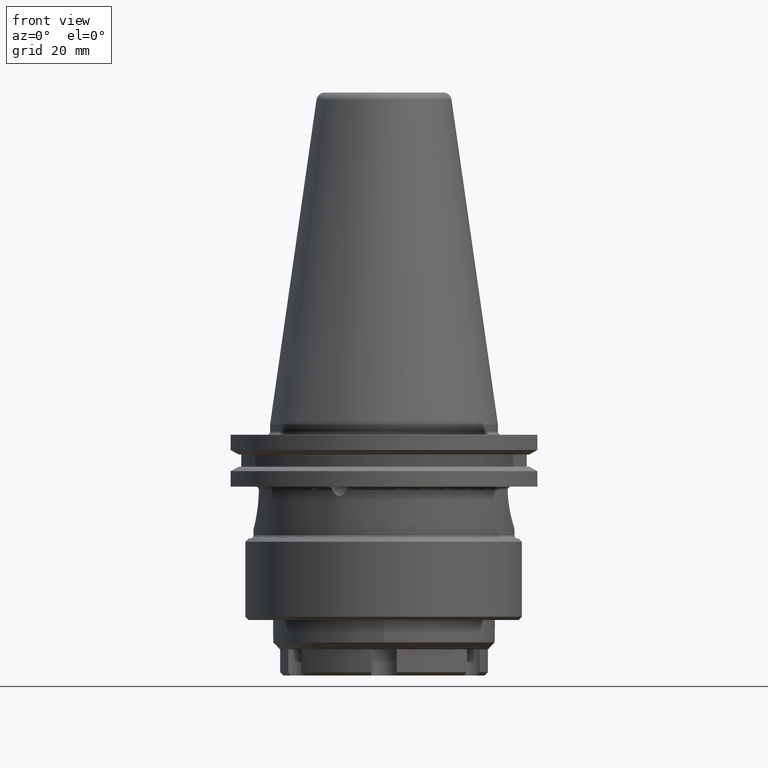
[diagram: clean part render]
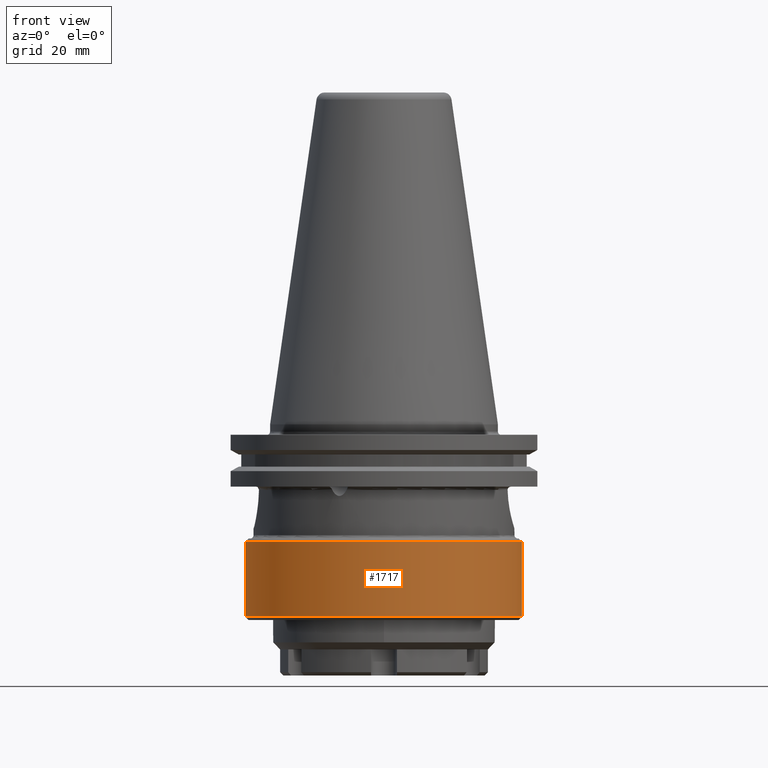
[diagram: same view with one face highlighted and labeled with its STEP entity id]
A machine part, front view. The second image highlights one B-rep face of the part: STEP entity #1717.
In plain terms, the highlighted cylindrical surface (bore or boss wall) has radius 42.5 mm, axis along (0, 0, -1).
Its self-contained STEP definition (entity closure, byte-faithful):
#324=CYLINDRICAL_SURFACE('',#1907,42.5);
#657=ORIENTED_EDGE('',*,*,#1023,.F.);
#658=ORIENTED_EDGE('',*,*,#1022,.T.);
#1022=EDGE_CURVE('',#1211,#1211,#1320,.T.);
#1023=EDGE_CURVE('',#1212,#1212,#1321,.T.);
#1211=VERTEX_POINT('',#2976);
#1212=VERTEX_POINT('',#2979);
#1320=CIRCLE('',#1906,42.5);
#1321=CIRCLE('',#1908,42.5);
#1423=EDGE_LOOP('',(#657));
#1424=EDGE_LOOP('',(#658));
#1551=FACE_BOUND('',#1423,.T.);
#1552=FACE_BOUND('',#1424,.T.);
#1717=ADVANCED_FACE('',(#1551,#1552),#324,.T.);
#1906=AXIS2_PLACEMENT_3D('',#2975,#2331,#2332);
#1907=AXIS2_PLACEMENT_3D('',#2977,#2333,#2334);
#1908=AXIS2_PLACEMENT_3D('',#2978,#2335,#2336);
#2331=DIRECTION('',(0.,2.22044604925031E-16,-1.));
#2332=DIRECTION('',(-1.,0.,0.));
#2333=DIRECTION('',(0.,2.22044604925031E-16,-1.));
#2334=DIRECTION('',(-1.,0.,0.));
#2335=DIRECTION('',(0.,2.22044604925031E-16,-1.));
#2336=DIRECTION('',(-1.,0.,0.));
#2975=CARTESIAN_POINT('',(0.,7.99360577730113E-15,-36.));
#2976=CARTESIAN_POINT('',(-42.5,7.99360577730113E-15,-36.));
#2977=CARTESIAN_POINT('',(0.,-1.26565424807268E-14,57.));
#2978=CARTESIAN_POINT('',(0.,1.31006316905769E-14,-59.));
#2979=CARTESIAN_POINT('',(-42.5,1.31006316905769E-14,-59.));